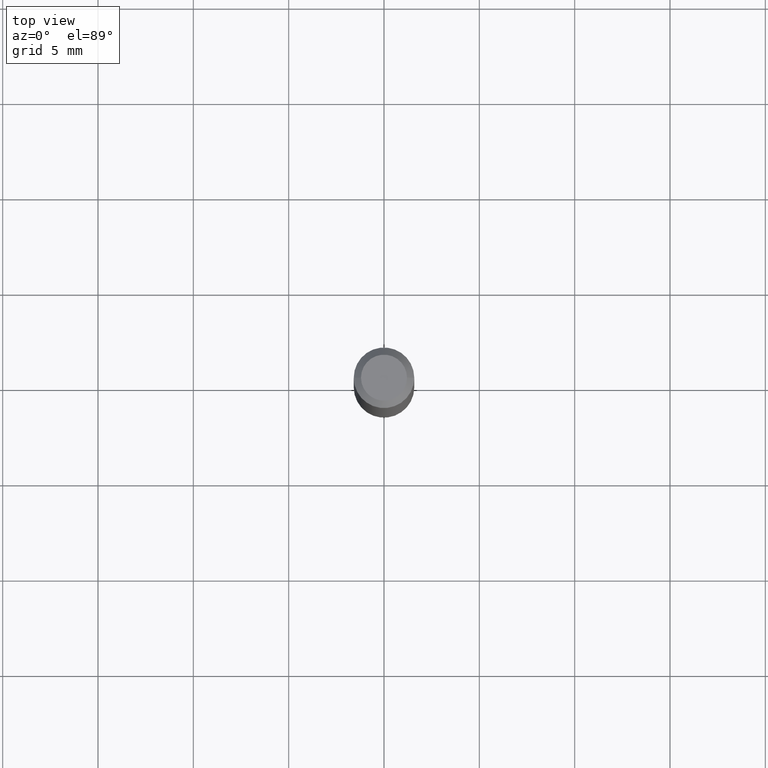
[diagram: clean part render]
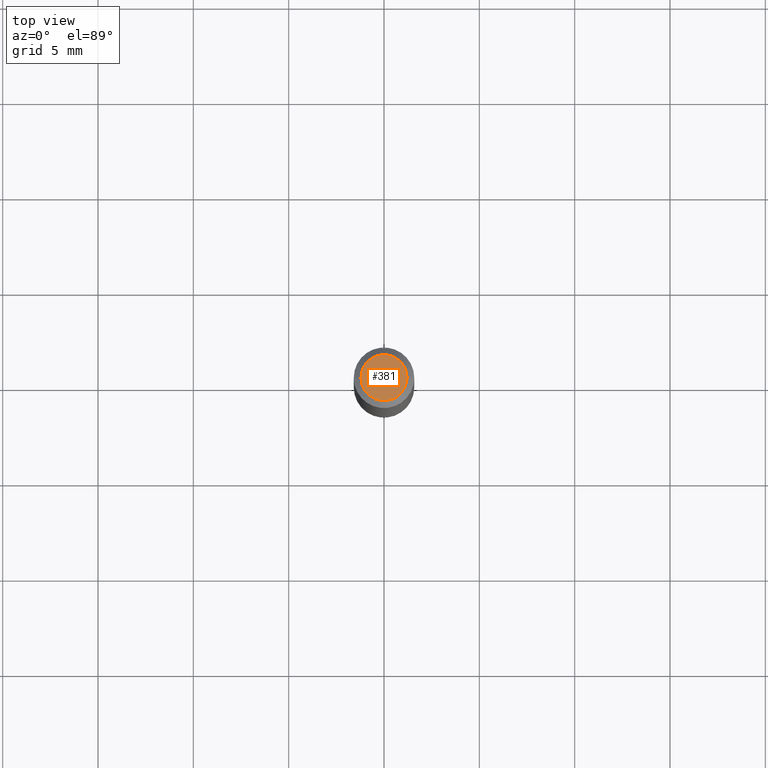
[diagram: same view with one face highlighted and labeled with its STEP entity id]
A machine part, top view. The second image highlights one B-rep face of the part: STEP entity #381.
In plain terms, the highlighted planar face has unit normal (0, -0, -1).
Its self-contained STEP definition (entity closure, byte-faithful):
#23 = DIRECTION ( 'NONE',  ( -2.445468806185136597E-29, 3.491481338843145583E-15, 1.000000000000000000 ) ) ;
#48 = CARTESIAN_POINT ( 'NONE',  ( -5.777927200411294166E-45, 8.249348732810209197E-31, 2.362707381831093744E-16 ) ) ;
#58 = CARTESIAN_POINT ( 'NONE',  ( 3.316907271900976096E-16, 0.04749999999999999362, -4.770999450349472156E-17 ) ) ;
#96 = PLANE ( 'NONE',  #321 ) ;
#127 = DIRECTION ( 'NONE',  ( 1.000000000000000000, -6.982962677686267499E-15, 4.852736867747366768E-29 ) ) ;
#163 = DIRECTION ( 'NONE',  ( -2.445468806185136597E-29, 3.491481338843145583E-15, 1.000000000000000000 ) ) ;
#172 = CIRCLE ( 'NONE', #417, 0.04749999999999999362 ) ;
#194 = CIRCLE ( 'NONE', #432, 0.04749999999999999362 ) ;
#234 = EDGE_CURVE ( 'NONE', #453, #346, #194, .T. ) ;
#273 = ORIENTED_EDGE ( 'NONE', *, *, #441, .T. ) ;
#280 = DIRECTION ( 'NONE',  ( -1.000000000000000000, 6.982962677686265922E-15, -4.876176775795935793E-29 ) ) ;
#299 = CARTESIAN_POINT ( 'NONE',  ( -0.04749999999999999362, 3.578768372314215436E-16, 2.362707381831069585E-16 ) ) ;
#309 = CARTESIAN_POINT ( 'NONE',  ( -5.777927200411294166E-45, 8.249348732810209197E-31, 2.362707381831093744E-16 ) ) ;
#317 = FACE_OUTER_BOUND ( 'NONE', #459, .T. ) ;
#321 = AXIS2_PLACEMENT_3D ( 'NONE', #58, #344, #280 ) ;
#338 = ORIENTED_EDGE ( 'NONE', *, *, #234, .T. ) ;
#344 = DIRECTION ( 'NONE',  ( 2.438088387897960049E-29, -3.491481338843145188E-15, -1.000000000000000000 ) ) ;
#346 = VERTEX_POINT ( 'NONE', #299 ) ;
#378 = DIRECTION ( 'NONE',  ( 1.000000000000000000, -6.982962677686267499E-15, 4.852736867747366768E-29 ) ) ;
#381 = ADVANCED_FACE ( 'NONE', ( #317 ), #96, .F. ) ;
#417 = AXIS2_PLACEMENT_3D ( 'NONE', #309, #23, #378 ) ;
#432 = AXIS2_PLACEMENT_3D ( 'NONE', #48, #163, #127 ) ;
#441 = EDGE_CURVE ( 'NONE', #346, #453, #172, .T. ) ;
#452 = CARTESIAN_POINT ( 'NONE',  ( 0.04749999999999999362, -4.035134999187574679E-16, 2.362707381831119382E-16 ) ) ;
#453 = VERTEX_POINT ( 'NONE', #452 ) ;
#459 = EDGE_LOOP ( 'NONE', ( #273, #338 ) ) ;